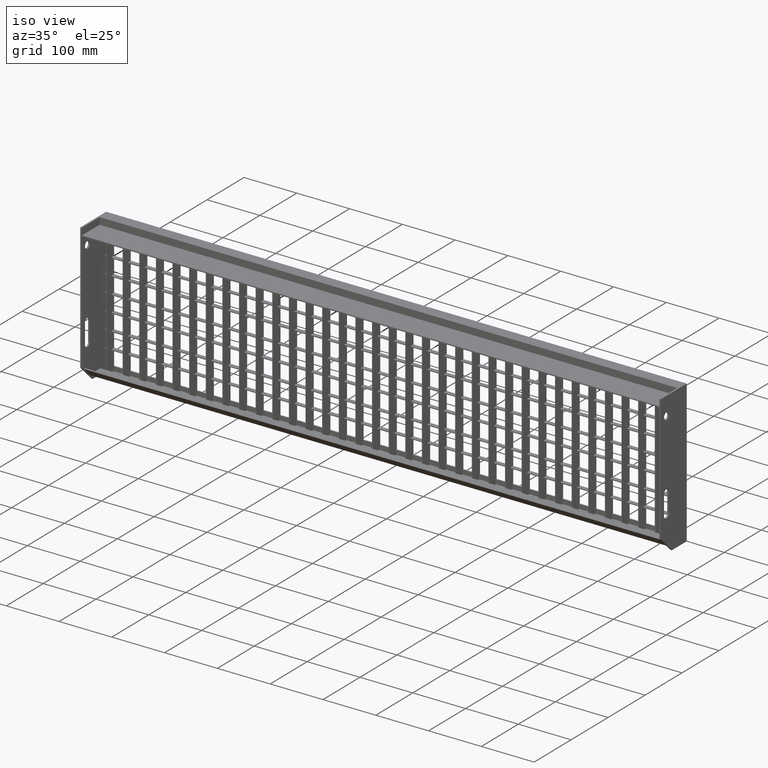
[diagram: clean part render]
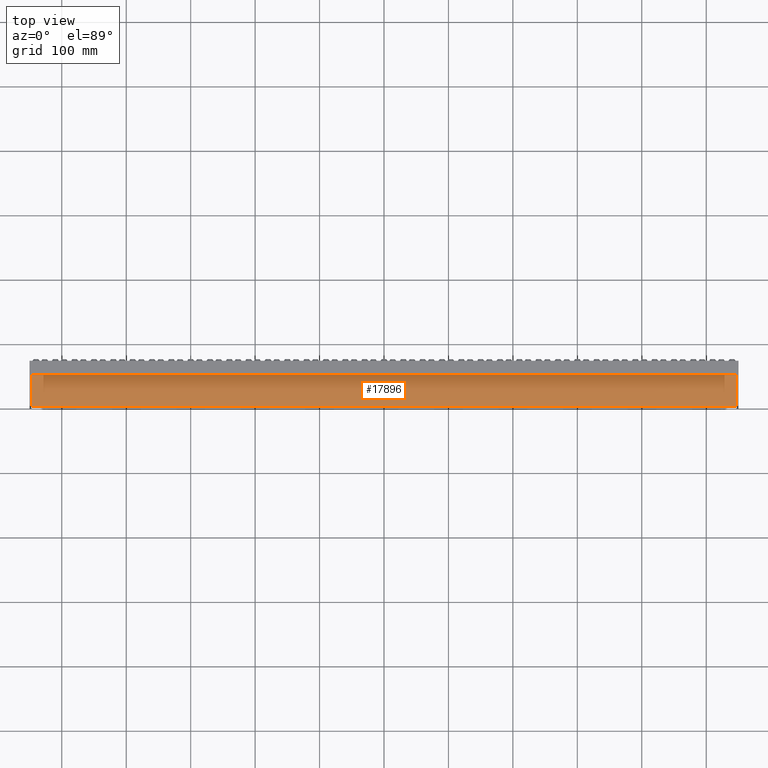
[diagram: tour spotlight — one face highlighted and labeled with its STEP entity id]
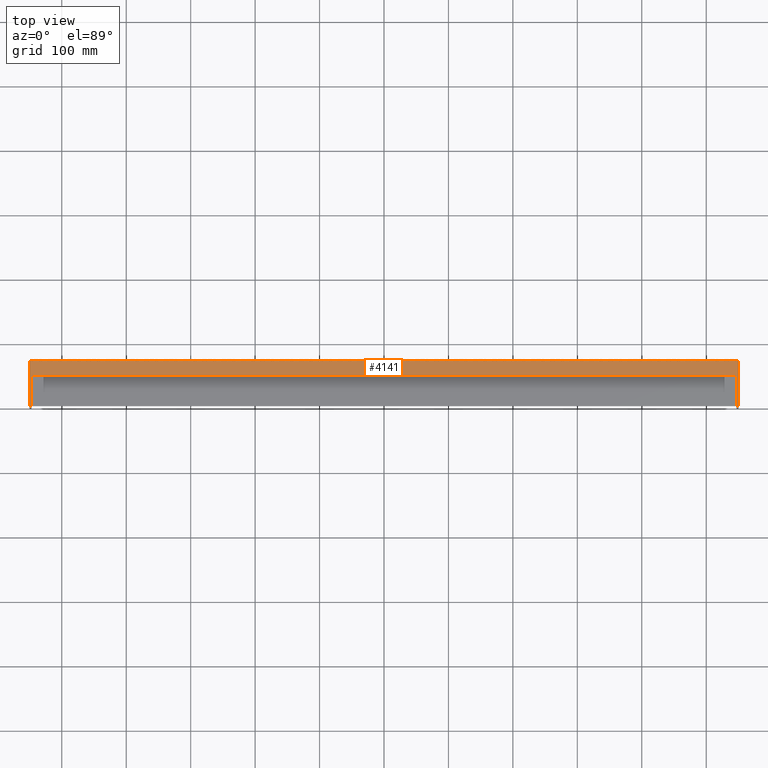
[diagram: tour spotlight — one face highlighted and labeled with its STEP entity id]
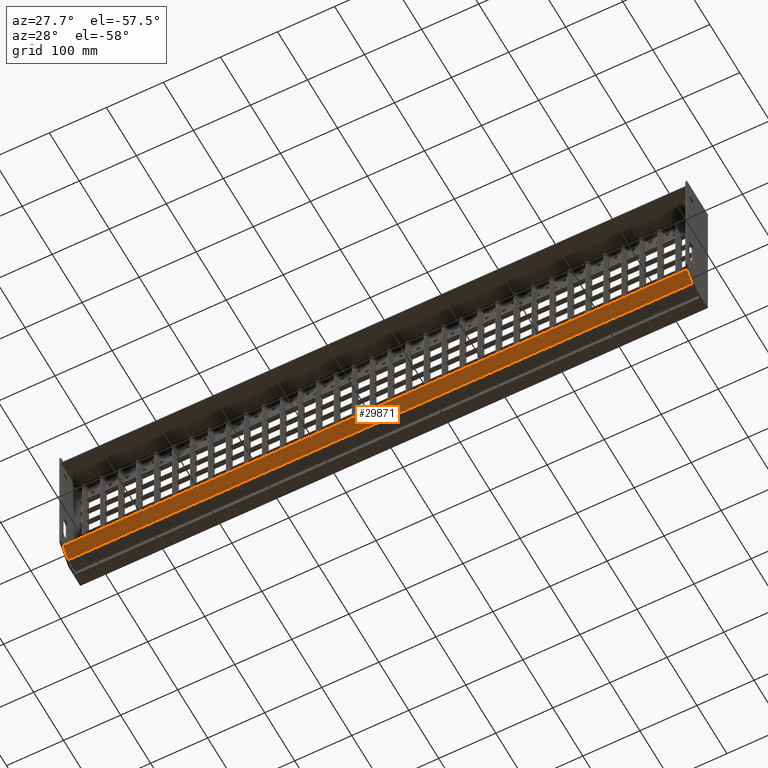
[diagram: tour spotlight — one face highlighted and labeled with its STEP entity id]
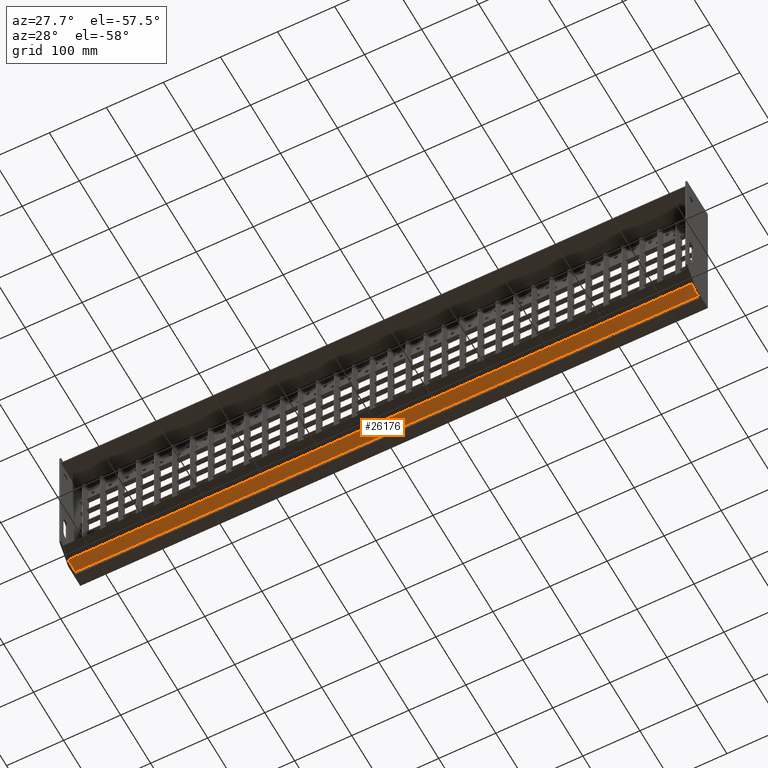
[diagram: tour spotlight — one face highlighted and labeled with its STEP entity id]
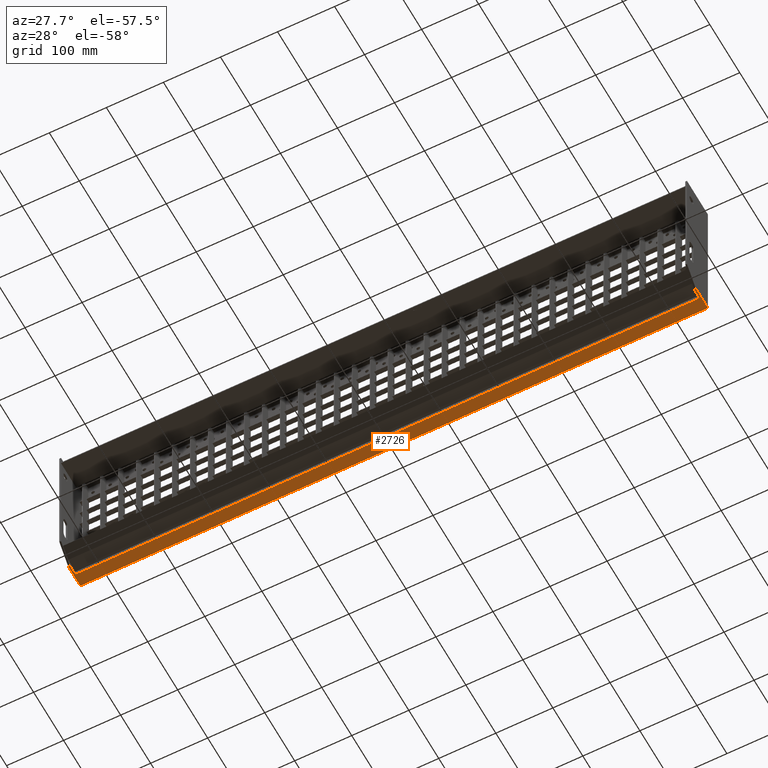
[diagram: tour spotlight — one face highlighted and labeled with its STEP entity id]
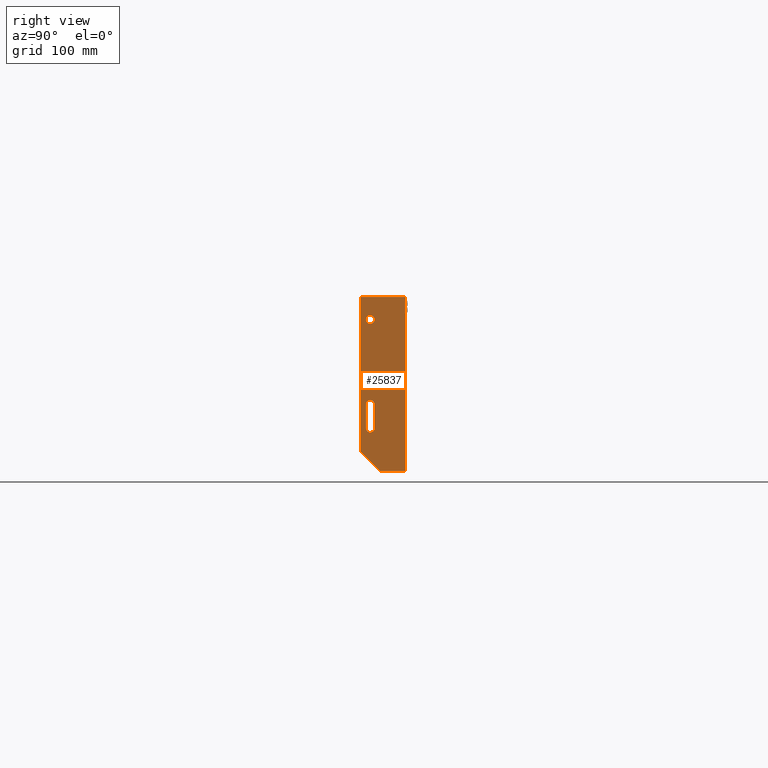
[diagram: tour spotlight — one face highlighted and labeled with its STEP entity id]
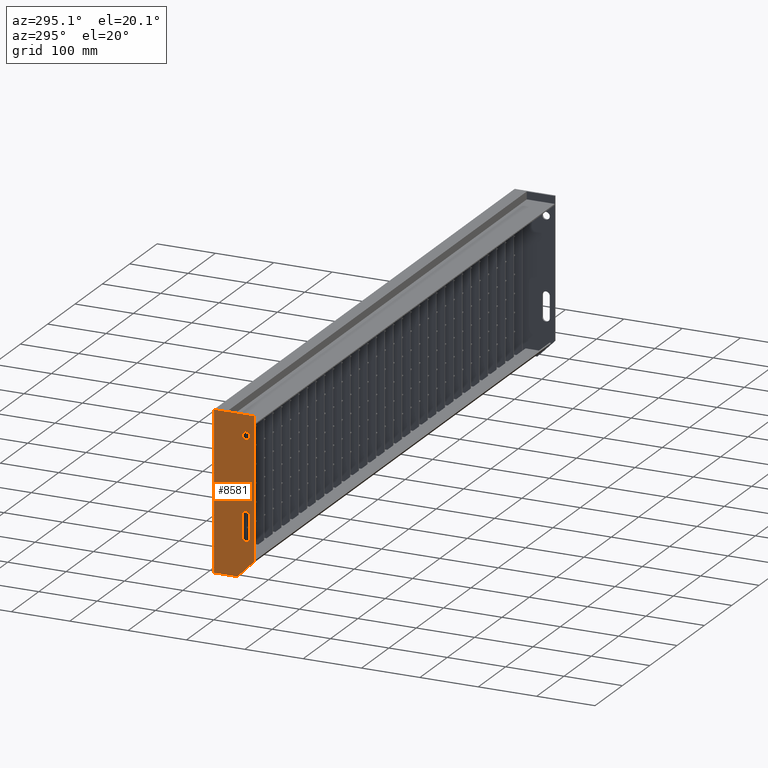
[diagram: tour spotlight — one face highlighted and labeled with its STEP entity id]
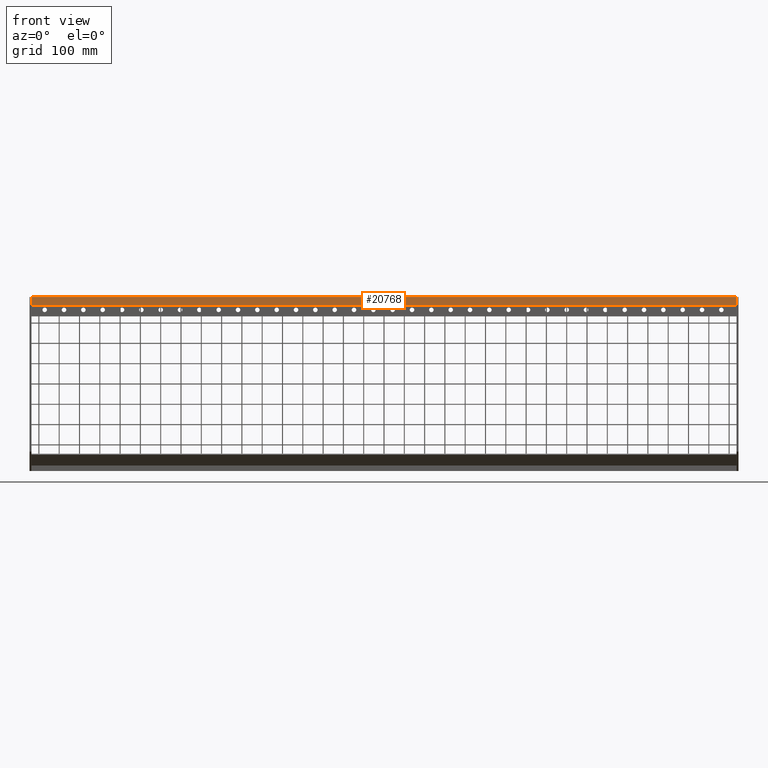
[diagram: tour spotlight — one face highlighted and labeled with its STEP entity id]
A machine part: a face-by-face anatomy tour. The part has 997 B-rep faces; the first image is the clean iso view, then the 8 largest visible faces are spotlighted one at a time (largest first), each with its STEP entity span.

Face 1 — top view, entity #17896. In plain terms, the highlighted planar face has unit normal (0, -0, -1).
Definition (entity closure, byte-faithful):
#3037 = LINE ( 'NONE', #6339, #6416 ) ;
#3094 = DIRECTION ( 'NONE',  ( -0.0000000000000000000, 1.000000000000000000, -3.614007241618339900E-017 ) ) ;
#3233 = CARTESIAN_POINT ( 'NONE',  ( 547.0000000000000000, 5.050613422867832400E-016, -12.99999999999999800 ) ) ;
#4289 = EDGE_LOOP ( 'NONE', ( #23753, #20074, #18747, #26481 ) ) ;
#6078 = VERTEX_POINT ( 'NONE', #30295 ) ;
#6229 = DIRECTION ( 'NONE',  ( 1.000000000000000000, -0.0000000000000000000, -0.0000000000000000000 ) ) ;
#6339 = CARTESIAN_POINT ( 'NONE',  ( -623.1577310586392300, 48.00000000000011400, -13.00000000000000000 ) ) ;
#6416 = VECTOR ( 'NONE', #6229, 1000.000000000000000 ) ;
#8819 = DIRECTION ( 'NONE',  ( 1.000000000000000000, -0.0000000000000000000, -0.0000000000000000000 ) ) ;
#10242 = EDGE_CURVE ( 'NONE', #6078, #25622, #33729, .T. ) ;
#11173 = PLANE ( 'NONE',  #27193 ) ;
#11463 = FACE_OUTER_BOUND ( 'NONE', #4289, .T. ) ;
#13854 = CARTESIAN_POINT ( 'NONE',  ( -547.0000000000000000, 48.00000000000011400, -13.00000000000000000 ) ) ;
#14410 = CARTESIAN_POINT ( 'NONE',  ( -547.0000000000000000, 48.00000000000011400, -13.00000000000000000 ) ) ;
#15365 = CARTESIAN_POINT ( 'NONE',  ( 547.0000000000000000, 48.00000000000011400, -13.00000000000000000 ) ) ;
#16050 = EDGE_CURVE ( 'NONE', #22966, #6078, #33395, .T. ) ;
#16568 = DIRECTION ( 'NONE',  ( 0.0000000000000000000, -3.614007241618339900E-017, -1.000000000000000000 ) ) ;
#17108 = DIRECTION ( 'NONE',  ( 0.0000000000000000000, -1.000000000000000000, 3.614007241618339900E-017 ) ) ;
#17896 = ADVANCED_FACE ( 'NONE', ( #11463 ), #11173, .F. ) ;
#18349 = VECTOR ( 'NONE', #17108, 1000.000000000000000 ) ;
#18747 = ORIENTED_EDGE ( 'NONE', *, *, #10242, .T. ) ;
#19501 = VECTOR ( 'NONE', #8819, 1000.000000000000000 ) ;
#19758 = DIRECTION ( 'NONE',  ( 0.0000000000000000000, 1.000000000000000000, -3.614007241618339900E-017 ) ) ;
#20074 = ORIENTED_EDGE ( 'NONE', *, *, #16050, .T. ) ;
#22262 = CARTESIAN_POINT ( 'NONE',  ( 547.0000000000000000, 48.00000000000011400, -13.00000000000000000 ) ) ;
#22592 = CARTESIAN_POINT ( 'NONE',  ( -623.1577310586392300, 5.050613422867832400E-016, -12.99999999999999800 ) ) ;
#22660 = VECTOR ( 'NONE', #3094, 1000.000000000000000 ) ;
#22966 = VERTEX_POINT ( 'NONE', #13854 ) ;
#23753 = ORIENTED_EDGE ( 'NONE', *, *, #29739, .F. ) ;
#25622 = VERTEX_POINT ( 'NONE', #3233 ) ;
#26481 = ORIENTED_EDGE ( 'NONE', *, *, #34875, .T. ) ;
#27193 = AXIS2_PLACEMENT_3D ( 'NONE', #32632, #16568, #19758 ) ;
#29739 = EDGE_CURVE ( 'NONE', #22966, #33208, #3037, .T. ) ;
#30295 = CARTESIAN_POINT ( 'NONE',  ( -547.0000000000000000, 2.020667218593132700E-013, -13.00000000000001100 ) ) ;
#31856 = LINE ( 'NONE', #22262, #22660 ) ;
#32632 = CARTESIAN_POINT ( 'NONE',  ( -623.1577310586392300, 48.00000000000011400, -13.00000000000000000 ) ) ;
#33208 = VERTEX_POINT ( 'NONE', #15365 ) ;
#33395 = LINE ( 'NONE', #14410, #18349 ) ;
#33729 = LINE ( 'NONE', #22592, #19501 ) ;
#34875 = EDGE_CURVE ( 'NONE', #25622, #33208, #31856, .T. ) ;

Face 2 — top view, entity #4141. In plain terms, the highlighted planar face has unit normal (0, 0, 1).
Definition (entity closure, byte-faithful):
#1 = DIRECTION ( 'NONE',  ( -1.000000000000000000, 0.0000000000000000000, 0.0000000000000000000 ) ) ;
#233 = CARTESIAN_POINT ( 'NONE',  ( 550.0000000000000000, 70.00000000000021300, 0.0000000000000000000 ) ) ;
#278 = CARTESIAN_POINT ( 'NONE',  ( 547.0000000000000000, 2.020667218593132700E-013, 0.0000000000000000000 ) ) ;
#374 = EDGE_CURVE ( 'NONE', #12097, #20906, #13455, .T. ) ;
#620 = CARTESIAN_POINT ( 'NONE',  ( 547.0000000000000000, 48.00000000000011400, 0.0000000000000000000 ) ) ;
#798 = ORIENTED_EDGE ( 'NONE', *, *, #374, .T. ) ;
#1203 = CARTESIAN_POINT ( 'NONE',  ( 547.0000000000000000, 2.020667218593132700E-013, 0.0000000000000000000 ) ) ;
#2608 = AXIS2_PLACEMENT_3D ( 'NONE', #34780, #26815, #21230 ) ;
#2614 = CARTESIAN_POINT ( 'NONE',  ( -547.0000000000000000, 2.020667218593132700E-013, 0.0000000000000000000 ) ) ;
#2747 = VERTEX_POINT ( 'NONE', #1203 ) ;
#3286 = EDGE_CURVE ( 'NONE', #12097, #28045, #21823, .T. ) ;
#3764 = VECTOR ( 'NONE', #6932, 1000.000000000000000 ) ;
#4107 = EDGE_CURVE ( 'NONE', #28693, #28677, #13391, .T. ) ;
#4141 = ADVANCED_FACE ( 'NONE', ( #12521 ), #21347, .T. ) ;
#4161 = CARTESIAN_POINT ( 'NONE',  ( 550.0000000000000000, 2.020667218593132700E-013, 0.0000000000000000000 ) ) ;
#4557 = CARTESIAN_POINT ( 'NONE',  ( -547.0000000000000000, 48.00000000000011400, 0.0000000000000000000 ) ) ;
#5184 = EDGE_CURVE ( 'NONE', #20906, #2747, #12031, .T. ) ;
#6735 = ORIENTED_EDGE ( 'NONE', *, *, #20027, .F. ) ;
#6758 = CARTESIAN_POINT ( 'NONE',  ( 550.0000000000000000, 2.020667218593132700E-013, 0.0000000000000000000 ) ) ;
#6932 = DIRECTION ( 'NONE',  ( 1.000000000000000000, -0.0000000000000000000, -0.0000000000000000000 ) ) ;
#7113 = DIRECTION ( 'NONE',  ( 0.0000000000000000000, -1.000000000000000000, -0.0000000000000000000 ) ) ;
#7489 = CARTESIAN_POINT ( 'NONE',  ( 547.0000000000000000, 2.020667218593132700E-013, 0.0000000000000000000 ) ) ;
#9478 = LINE ( 'NONE', #278, #28363 ) ;
#9480 = VECTOR ( 'NONE', #7113, 1000.000000000000000 ) ;
#9919 = LINE ( 'NONE', #15352, #9480 ) ;
#11984 = ORIENTED_EDGE ( 'NONE', *, *, #4107, .F. ) ;
#12031 = LINE ( 'NONE', #7489, #13721 ) ;
#12097 = VERTEX_POINT ( 'NONE', #4557 ) ;
#12411 = DIRECTION ( 'NONE',  ( -0.0000000000000000000, -1.000000000000000000, -0.0000000000000000000 ) ) ;
#12521 = FACE_OUTER_BOUND ( 'NONE', #20956, .T. ) ;
#13043 = VECTOR ( 'NONE', #1, 1000.000000000000000 ) ;
#13391 = LINE ( 'NONE', #21109, #22627 ) ;
#13414 = CARTESIAN_POINT ( 'NONE',  ( -550.0000000000000000, 2.020667218593132700E-013, 0.0000000000000000000 ) ) ;
#13455 = LINE ( 'NONE', #33106, #3764 ) ;
#13721 = VECTOR ( 'NONE', #21037, 1000.000000000000000 ) ;
#15067 = VECTOR ( 'NONE', #33533, 1000.000000000000000 ) ;
#15352 = CARTESIAN_POINT ( 'NONE',  ( -550.0000000000000000, 2.020667218593132700E-013, 0.0000000000000000000 ) ) ;
#16925 = VERTEX_POINT ( 'NONE', #13414 ) ;
#18809 = ORIENTED_EDGE ( 'NONE', *, *, #28036, .T. ) ;
#20027 = EDGE_CURVE ( 'NONE', #28677, #26654, #22730, .T. ) ;
#20230 = VECTOR ( 'NONE', #12411, 1000.000000000000000 ) ;
#20906 = VERTEX_POINT ( 'NONE', #620 ) ;
#20956 = EDGE_LOOP ( 'NONE', ( #6735, #11984, #18809, #29977, #22183, #798, #33198, #30300 ) ) ;
#21037 = DIRECTION ( 'NONE',  ( -0.0000000000000000000, -1.000000000000000000, -0.0000000000000000000 ) ) ;
#21109 = CARTESIAN_POINT ( 'NONE',  ( 547.0000000000000000, 70.00000000000021300, 0.0000000000000000000 ) ) ;
#21230 = DIRECTION ( 'NONE',  ( 1.000000000000000000, 0.0000000000000000000, -0.0000000000000000000 ) ) ;
#21347 = PLANE ( 'NONE',  #2608 ) ;
#21823 = LINE ( 'NONE', #27346, #15067 ) ;
#22183 = ORIENTED_EDGE ( 'NONE', *, *, #3286, .F. ) ;
#22627 = VECTOR ( 'NONE', #23789, 1000.000000000000000 ) ;
#22730 = LINE ( 'NONE', #6758, #20230 ) ;
#23170 = EDGE_CURVE ( 'NONE', #2747, #26654, #9478, .T. ) ;
#23789 = DIRECTION ( 'NONE',  ( 1.000000000000000000, 0.0000000000000000000, 0.0000000000000000000 ) ) ;
#24191 = EDGE_CURVE ( 'NONE', #28045, #16925, #27300, .T. ) ;
#24360 = CARTESIAN_POINT ( 'NONE',  ( -550.0000000000000000, 70.00000000000021300, 0.0000000000000000000 ) ) ;
#26029 = CARTESIAN_POINT ( 'NONE',  ( -547.0000000000000000, 2.020667218593132700E-013, 0.0000000000000000000 ) ) ;
#26654 = VERTEX_POINT ( 'NONE', #4161 ) ;
#26815 = DIRECTION ( 'NONE',  ( 0.0000000000000000000, 0.0000000000000000000, 1.000000000000000000 ) ) ;
#27300 = LINE ( 'NONE', #2614, #13043 ) ;
#27346 = CARTESIAN_POINT ( 'NONE',  ( -547.0000000000000000, 2.020667218593132700E-013, 0.0000000000000000000 ) ) ;
#28036 = EDGE_CURVE ( 'NONE', #28693, #16925, #9919, .T. ) ;
#28045 = VERTEX_POINT ( 'NONE', #26029 ) ;
#28363 = VECTOR ( 'NONE', #30217, 1000.000000000000000 ) ;
#28677 = VERTEX_POINT ( 'NONE', #233 ) ;
#28693 = VERTEX_POINT ( 'NONE', #24360 ) ;
#29977 = ORIENTED_EDGE ( 'NONE', *, *, #24191, .F. ) ;
#30217 = DIRECTION ( 'NONE',  ( 1.000000000000000000, 0.0000000000000000000, 0.0000000000000000000 ) ) ;
#30300 = ORIENTED_EDGE ( 'NONE', *, *, #23170, .T. ) ;
#33106 = CARTESIAN_POINT ( 'NONE',  ( -623.1577310586392300, 48.00000000000011400, 0.0000000000000000000 ) ) ;
#33198 = ORIENTED_EDGE ( 'NONE', *, *, #5184, .T. ) ;
#33533 = DIRECTION ( 'NONE',  ( 0.0000000000000000000, -1.000000000000000000, -0.0000000000000000000 ) ) ;
#34780 = CARTESIAN_POINT ( 'NONE',  ( 547.0000000000000000, 2.020667218593132700E-013, 0.0000000000000000000 ) ) ;

Face 3 — auxiliary view, entity #29871. In plain terms, the highlighted planar face has unit normal (0, 0.7071, 0.7071).
Definition (entity closure, byte-faithful):
#206 = LINE ( 'NONE', #12543, #15790 ) ;
#2105 = EDGE_CURVE ( 'NONE', #3517, #21243, #28164, .T. ) ;
#3517 = VERTEX_POINT ( 'NONE', #4430 ) ;
#4430 = CARTESIAN_POINT ( 'NONE',  ( -547.0000000000000000, 6.650757595082533900, -244.5294372515228600 ) ) ;
#4707 = ORIENTED_EDGE ( 'NONE', *, *, #28063, .T. ) ;
#5951 = VECTOR ( 'NONE', #18269, 1000.000000000000100 ) ;
#6528 = DIRECTION ( 'NONE',  ( 1.000000000000000000, -0.0000000000000000000, -0.0000000000000000000 ) ) ;
#7234 = DIRECTION ( 'NONE',  ( 0.0000000000000000000, -0.7071067811865474600, 0.7071067811865474600 ) ) ;
#7960 = EDGE_CURVE ( 'NONE', #3517, #28719, #20706, .T. ) ;
#9286 = DIRECTION ( 'NONE',  ( 0.0000000000000000000, 0.7071067811865475700, 0.7071067811865475700 ) ) ;
#10383 = VECTOR ( 'NONE', #6528, 1000.000000000000000 ) ;
#11586 = VERTEX_POINT ( 'NONE', #29400 ) ;
#11987 = DIRECTION ( 'NONE',  ( 0.0000000000000000000, -0.7071067811865474600, 0.7071067811865474600 ) ) ;
#12543 = CARTESIAN_POINT ( 'NONE',  ( 547.0000000000000000, 23.62132034355966700, -261.5000000000000000 ) ) ;
#14999 = CARTESIAN_POINT ( 'NONE',  ( -623.1577310586392300, 23.62132034355966700, -261.5000000000000000 ) ) ;
#15413 = LINE ( 'NONE', #14999, #10383 ) ;
#15790 = VECTOR ( 'NONE', #7234, 1000.000000000000100 ) ;
#16962 = ORIENTED_EDGE ( 'NONE', *, *, #26634, .T. ) ;
#18269 = DIRECTION ( 'NONE',  ( 0.0000000000000000000, 0.7071067811865474600, -0.7071067811865474600 ) ) ;
#18273 = AXIS2_PLACEMENT_3D ( 'NONE', #25379, #9286, #11987 ) ;
#19067 = EDGE_LOOP ( 'NONE', ( #27662, #28784, #16962, #4707 ) ) ;
#20231 = VECTOR ( 'NONE', #20381, 1000.000000000000000 ) ;
#20381 = DIRECTION ( 'NONE',  ( 1.000000000000000000, -0.0000000000000000000, -0.0000000000000000000 ) ) ;
#20706 = LINE ( 'NONE', #31357, #5951 ) ;
#21243 = VERTEX_POINT ( 'NONE', #29574 ) ;
#24253 = CARTESIAN_POINT ( 'NONE',  ( -547.0000000000000000, 23.62132034355964200, -261.5000000000000000 ) ) ;
#25379 = CARTESIAN_POINT ( 'NONE',  ( -623.1577310586392300, 23.62132034355966700, -261.5000000000000000 ) ) ;
#25731 = FACE_OUTER_BOUND ( 'NONE', #19067, .T. ) ;
#25965 = CARTESIAN_POINT ( 'NONE',  ( -623.1577310586392300, 6.650757595082533900, -244.5294372515228600 ) ) ;
#26634 = EDGE_CURVE ( 'NONE', #28719, #11586, #15413, .T. ) ;
#27662 = ORIENTED_EDGE ( 'NONE', *, *, #2105, .F. ) ;
#28063 = EDGE_CURVE ( 'NONE', #11586, #21243, #206, .T. ) ;
#28164 = LINE ( 'NONE', #25965, #20231 ) ;
#28719 = VERTEX_POINT ( 'NONE', #24253 ) ;
#28784 = ORIENTED_EDGE ( 'NONE', *, *, #7960, .T. ) ;
#29400 = CARTESIAN_POINT ( 'NONE',  ( 547.0000000000000000, 23.62132034355966700, -261.5000000000000000 ) ) ;
#29574 = CARTESIAN_POINT ( 'NONE',  ( 547.0000000000000000, 6.650757595082533900, -244.5294372515228600 ) ) ;
#29871 = ADVANCED_FACE ( 'NONE', ( #25731 ), #31230, .F. ) ;
#31230 = PLANE ( 'NONE',  #18273 ) ;
#31357 = CARTESIAN_POINT ( 'NONE',  ( -547.0000000000000000, 23.62132034355966700, -261.5000000000000000 ) ) ;

Face 4 — auxiliary view, entity #26176. In plain terms, the highlighted planar face has unit normal (0, 0, 1).
Definition (entity closure, byte-faithful):
#392 = LINE ( 'NONE', #14580, #28552 ) ;
#1685 = VERTEX_POINT ( 'NONE', #32054 ) ;
#2460 = DIRECTION ( 'NONE',  ( 0.0000000000000000000, 1.000000000000000000, 0.0000000000000000000 ) ) ;
#3969 = LINE ( 'NONE', #20566, #34589 ) ;
#4725 = EDGE_CURVE ( 'NONE', #28719, #29653, #11230, .T. ) ;
#6528 = DIRECTION ( 'NONE',  ( 1.000000000000000000, -0.0000000000000000000, -0.0000000000000000000 ) ) ;
#8488 = EDGE_CURVE ( 'NONE', #29653, #1685, #3969, .T. ) ;
#9985 = FACE_OUTER_BOUND ( 'NONE', #13987, .T. ) ;
#10224 = ORIENTED_EDGE ( 'NONE', *, *, #8488, .T. ) ;
#10383 = VECTOR ( 'NONE', #6528, 1000.000000000000000 ) ;
#11230 = LINE ( 'NONE', #34627, #24254 ) ;
#11434 = DIRECTION ( 'NONE',  ( 0.0000000000000000000, 0.0000000000000000000, 1.000000000000000000 ) ) ;
#11586 = VERTEX_POINT ( 'NONE', #29400 ) ;
#11977 = DIRECTION ( 'NONE',  ( 0.0000000000000000000, -1.000000000000000000, 0.0000000000000000000 ) ) ;
#13987 = EDGE_LOOP ( 'NONE', ( #34098, #22606, #10224, #29116 ) ) ;
#14118 = CARTESIAN_POINT ( 'NONE',  ( -547.0000000000000000, 48.00000000000020600, -261.5000000000000000 ) ) ;
#14580 = CARTESIAN_POINT ( 'NONE',  ( 547.0000000000000000, 48.00000000000020600, -261.5000000000000000 ) ) ;
#14999 = CARTESIAN_POINT ( 'NONE',  ( -623.1577310586392300, 23.62132034355966700, -261.5000000000000000 ) ) ;
#15413 = LINE ( 'NONE', #14999, #10383 ) ;
#17974 = DIRECTION ( 'NONE',  ( 1.000000000000000000, -0.0000000000000000000, -0.0000000000000000000 ) ) ;
#19797 = CARTESIAN_POINT ( 'NONE',  ( -623.1577310586392300, 48.00000000000020600, -261.5000000000000000 ) ) ;
#20506 = EDGE_CURVE ( 'NONE', #1685, #11586, #392, .T. ) ;
#20566 = CARTESIAN_POINT ( 'NONE',  ( -623.1577310586392300, 48.00000000000020600, -261.5000000000000000 ) ) ;
#22026 = PLANE ( 'NONE',  #24014 ) ;
#22606 = ORIENTED_EDGE ( 'NONE', *, *, #4725, .T. ) ;
#24014 = AXIS2_PLACEMENT_3D ( 'NONE', #19797, #11434, #27389 ) ;
#24253 = CARTESIAN_POINT ( 'NONE',  ( -547.0000000000000000, 23.62132034355964200, -261.5000000000000000 ) ) ;
#24254 = VECTOR ( 'NONE', #2460, 1000.000000000000000 ) ;
#26176 = ADVANCED_FACE ( 'NONE', ( #9985 ), #22026, .F. ) ;
#26634 = EDGE_CURVE ( 'NONE', #28719, #11586, #15413, .T. ) ;
#27389 = DIRECTION ( 'NONE',  ( 1.000000000000000000, 0.0000000000000000000, -0.0000000000000000000 ) ) ;
#28552 = VECTOR ( 'NONE', #11977, 1000.000000000000000 ) ;
#28719 = VERTEX_POINT ( 'NONE', #24253 ) ;
#29116 = ORIENTED_EDGE ( 'NONE', *, *, #20506, .T. ) ;
#29400 = CARTESIAN_POINT ( 'NONE',  ( 547.0000000000000000, 23.62132034355966700, -261.5000000000000000 ) ) ;
#29653 = VERTEX_POINT ( 'NONE', #14118 ) ;
#32054 = CARTESIAN_POINT ( 'NONE',  ( 547.0000000000000000, 48.00000000000020600, -261.5000000000000000 ) ) ;
#34098 = ORIENTED_EDGE ( 'NONE', *, *, #26634, .F. ) ;
#34589 = VECTOR ( 'NONE', #17974, 1000.000000000000000 ) ;
#34627 = CARTESIAN_POINT ( 'NONE',  ( -547.0000000000000000, 48.00000000000020600, -261.5000000000000000 ) ) ;

Face 5 — auxiliary view, entity #2726. In plain terms, the highlighted planar face has unit normal (0, 0, -1).
Definition (entity closure, byte-faithful):
#449 = LINE ( 'NONE', #21615, #25288 ) ;
#480 = VECTOR ( 'NONE', #23661, 1000.000000000000000 ) ;
#561 = DIRECTION ( 'NONE',  ( 1.000000000000000000, 0.0000000000000000000, 0.0000000000000000000 ) ) ;
#911 = VECTOR ( 'NONE', #29398, 1000.000000000000000 ) ;
#1672 = DIRECTION ( 'NONE',  ( 0.0000000000000000000, 0.0000000000000000000, -1.000000000000000000 ) ) ;
#2671 = ORIENTED_EDGE ( 'NONE', *, *, #7194, .T. ) ;
#2726 = ADVANCED_FACE ( 'NONE', ( #7136 ), #20531, .T. ) ;
#2988 = LINE ( 'NONE', #23566, #19017 ) ;
#4383 = DIRECTION ( 'NONE',  ( -1.000000000000000000, 0.0000000000000000000, -0.0000000000000000000 ) ) ;
#4749 = CARTESIAN_POINT ( 'NONE',  ( 550.0000000000000000, 70.00000000000021300, -270.0000000000000000 ) ) ;
#4825 = ORIENTED_EDGE ( 'NONE', *, *, #15124, .F. ) ;
#5708 = CARTESIAN_POINT ( 'NONE',  ( 550.0000000000000000, 30.00000000000020600, -270.0000000000000000 ) ) ;
#5904 = EDGE_LOOP ( 'NONE', ( #4825, #34536, #6312, #7266, #26212, #11557, #2671, #23565 ) ) ;
#6312 = ORIENTED_EDGE ( 'NONE', *, *, #11144, .T. ) ;
#7136 = FACE_OUTER_BOUND ( 'NONE', #5904, .T. ) ;
#7194 = EDGE_CURVE ( 'NONE', #9778, #16555, #17831, .T. ) ;
#7266 = ORIENTED_EDGE ( 'NONE', *, *, #7540, .F. ) ;
#7540 = EDGE_CURVE ( 'NONE', #26785, #26973, #16923, .T. ) ;
#7922 = CARTESIAN_POINT ( 'NONE',  ( -623.1577310586392300, 48.00000000000020600, -270.0000000000000000 ) ) ;
#8081 = DIRECTION ( 'NONE',  ( -0.0000000000000000000, 1.000000000000000000, -0.0000000000000000000 ) ) ;
#9209 = CARTESIAN_POINT ( 'NONE',  ( 547.0000000000000000, 30.00000000000020600, -270.0000000000000000 ) ) ;
#9778 = VERTEX_POINT ( 'NONE', #29641 ) ;
#10110 = CARTESIAN_POINT ( 'NONE',  ( 550.0000000000000000, 70.00000000000021300, -270.0000000000000000 ) ) ;
#10428 = DIRECTION ( 'NONE',  ( 0.0000000000000000000, 1.000000000000000000, 0.0000000000000000000 ) ) ;
#11144 = EDGE_CURVE ( 'NONE', #33581, #26973, #449, .T. ) ;
#11479 = EDGE_CURVE ( 'NONE', #21160, #9778, #2988, .T. ) ;
#11557 = ORIENTED_EDGE ( 'NONE', *, *, #11479, .T. ) ;
#11683 = EDGE_CURVE ( 'NONE', #33581, #21717, #26934, .T. ) ;
#12405 = DIRECTION ( 'NONE',  ( -1.000000000000000000, 0.0000000000000000000, 0.0000000000000000000 ) ) ;
#12736 = LINE ( 'NONE', #15438, #480 ) ;
#12921 = LINE ( 'NONE', #10110, #31784 ) ;
#15124 = EDGE_CURVE ( 'NONE', #21717, #17821, #12921, .T. ) ;
#15438 = CARTESIAN_POINT ( 'NONE',  ( -547.0000000000000000, 70.00000000000021300, -270.0000000000000000 ) ) ;
#16555 = VERTEX_POINT ( 'NONE', #28096 ) ;
#16923 = LINE ( 'NONE', #7922, #911 ) ;
#17821 = VERTEX_POINT ( 'NONE', #4749 ) ;
#17831 = LINE ( 'NONE', #34810, #27864 ) ;
#19017 = VECTOR ( 'NONE', #12405, 1000.000000000000000 ) ;
#19039 = EDGE_CURVE ( 'NONE', #21160, #26785, #12736, .T. ) ;
#20531 = PLANE ( 'NONE',  #34069 ) ;
#20643 = CARTESIAN_POINT ( 'NONE',  ( -547.0000000000000000, 30.00000000000020600, -270.0000000000000000 ) ) ;
#21160 = VERTEX_POINT ( 'NONE', #20643 ) ;
#21615 = CARTESIAN_POINT ( 'NONE',  ( 547.0000000000000000, 70.00000000000021300, -270.0000000000000000 ) ) ;
#21717 = VERTEX_POINT ( 'NONE', #5708 ) ;
#21765 = EDGE_CURVE ( 'NONE', #16555, #17821, #22625, .T. ) ;
#22625 = LINE ( 'NONE', #26851, #28060 ) ;
#23565 = ORIENTED_EDGE ( 'NONE', *, *, #21765, .T. ) ;
#23566 = CARTESIAN_POINT ( 'NONE',  ( -547.0000000000000000, 30.00000000000020600, -270.0000000000000000 ) ) ;
#23661 = DIRECTION ( 'NONE',  ( 0.0000000000000000000, 1.000000000000000000, 0.0000000000000000000 ) ) ;
#23804 = CARTESIAN_POINT ( 'NONE',  ( -547.0000000000000000, 48.00000000000020600, -270.0000000000000000 ) ) ;
#24032 = VECTOR ( 'NONE', #561, 1000.000000000000000 ) ;
#24838 = CARTESIAN_POINT ( 'NONE',  ( 547.0000000000000000, 48.00000000000020600, -270.0000000000000000 ) ) ;
#25288 = VECTOR ( 'NONE', #8081, 1000.000000000000000 ) ;
#25418 = CARTESIAN_POINT ( 'NONE',  ( 547.0000000000000000, 70.00000000000021300, -270.0000000000000000 ) ) ;
#26212 = ORIENTED_EDGE ( 'NONE', *, *, #19039, .F. ) ;
#26785 = VERTEX_POINT ( 'NONE', #23804 ) ;
#26851 = CARTESIAN_POINT ( 'NONE',  ( 547.0000000000000000, 70.00000000000021300, -270.0000000000000000 ) ) ;
#26934 = LINE ( 'NONE', #32853, #24032 ) ;
#26973 = VERTEX_POINT ( 'NONE', #24838 ) ;
#27864 = VECTOR ( 'NONE', #10428, 1000.000000000000000 ) ;
#28060 = VECTOR ( 'NONE', #32359, 1000.000000000000000 ) ;
#28096 = CARTESIAN_POINT ( 'NONE',  ( -550.0000000000000000, 70.00000000000021300, -270.0000000000000000 ) ) ;
#28641 = DIRECTION ( 'NONE',  ( -0.0000000000000000000, 1.000000000000000000, -0.0000000000000000000 ) ) ;
#29398 = DIRECTION ( 'NONE',  ( 1.000000000000000000, -0.0000000000000000000, -0.0000000000000000000 ) ) ;
#29641 = CARTESIAN_POINT ( 'NONE',  ( -550.0000000000000000, 30.00000000000020600, -270.0000000000000000 ) ) ;
#31784 = VECTOR ( 'NONE', #28641, 1000.000000000000000 ) ;
#32359 = DIRECTION ( 'NONE',  ( 1.000000000000000000, 0.0000000000000000000, 0.0000000000000000000 ) ) ;
#32853 = CARTESIAN_POINT ( 'NONE',  ( 547.0000000000000000, 30.00000000000020600, -270.0000000000000000 ) ) ;
#33581 = VERTEX_POINT ( 'NONE', #9209 ) ;
#34069 = AXIS2_PLACEMENT_3D ( 'NONE', #25418, #1672, #4383 ) ;
#34536 = ORIENTED_EDGE ( 'NONE', *, *, #11683, .F. ) ;
#34810 = CARTESIAN_POINT ( 'NONE',  ( -550.0000000000000000, 70.00000000000021300, -270.0000000000000000 ) ) ;

Face 6 — right view, entity #25837. In plain terms, the highlighted planar face has unit normal (-1, 0, 0).
Definition (entity closure, byte-faithful):
#233 = CARTESIAN_POINT ( 'NONE',  ( 550.0000000000000000, 70.00000000000021300, 0.0000000000000000000 ) ) ;
#459 = VERTEX_POINT ( 'NONE', #12937 ) ;
#563 = VERTEX_POINT ( 'NONE', #13044 ) ;
#914 = LINE ( 'NONE', #27876, #33665 ) ;
#1210 = CARTESIAN_POINT ( 'NONE',  ( 550.0000000000000000, 15.00000000000017900, -35.00000000000000000 ) ) ;
#1443 = EDGE_CURVE ( 'NONE', #30054, #21717, #8765, .T. ) ;
#1679 = CARTESIAN_POINT ( 'NONE',  ( 550.0000000000000000, 15.00000000000017900, -35.00000000000000000 ) ) ;
#1764 = CARTESIAN_POINT ( 'NONE',  ( 550.0000000000000000, 8.500000000000163400, -166.4999999999999400 ) ) ;
#3229 = ORIENTED_EDGE ( 'NONE', *, *, #27923, .F. ) ;
#4161 = CARTESIAN_POINT ( 'NONE',  ( 550.0000000000000000, 2.020667218593132700E-013, 0.0000000000000000000 ) ) ;
#4269 = DIRECTION ( 'NONE',  ( 0.0000000000000000000, 0.0000000000000000000, -1.000000000000000000 ) ) ;
#4366 = LINE ( 'NONE', #20970, #18713 ) ;
#4407 = DIRECTION ( 'NONE',  ( 1.000000000000000000, 0.0000000000000000000, 0.0000000000000000000 ) ) ;
#4435 = LINE ( 'NONE', #1764, #17932 ) ;
#4749 = CARTESIAN_POINT ( 'NONE',  ( 550.0000000000000000, 70.00000000000021300, -270.0000000000000000 ) ) ;
#5351 = EDGE_CURVE ( 'NONE', #7588, #16445, #4435, .T. ) ;
#5708 = CARTESIAN_POINT ( 'NONE',  ( 550.0000000000000000, 30.00000000000020600, -270.0000000000000000 ) ) ;
#6728 = CARTESIAN_POINT ( 'NONE',  ( 550.0000000000000000, 15.00000000000018300, -203.4999999999998900 ) ) ;
#6758 = CARTESIAN_POINT ( 'NONE',  ( 550.0000000000000000, 2.020667218593132700E-013, 0.0000000000000000000 ) ) ;
#7103 = DIRECTION ( 'NONE',  ( -1.000000000000000000, 0.0000000000000000000, 0.0000000000000000000 ) ) ;
#7124 = DIRECTION ( 'NONE',  ( 0.0000000000000000000, 0.0000000000000000000, -1.000000000000000000 ) ) ;
#7478 = DIRECTION ( 'NONE',  ( 1.000000000000000000, 0.0000000000000000000, 0.0000000000000000000 ) ) ;
#7588 = VERTEX_POINT ( 'NONE', #8151 ) ;
#8082 = ORIENTED_EDGE ( 'NONE', *, *, #16797, .T. ) ;
#8151 = CARTESIAN_POINT ( 'NONE',  ( 550.0000000000000000, 8.500000000000163400, -166.4999999999999400 ) ) ;
#8282 = FACE_OUTER_BOUND ( 'NONE', #29033, .T. ) ;
#8765 = LINE ( 'NONE', #23168, #22237 ) ;
#8892 = CARTESIAN_POINT ( 'NONE',  ( 550.0000000000000000, 15.00000000000017900, -28.50000000000000400 ) ) ;
#8916 = CIRCLE ( 'NONE', #10412, 6.500000000000005300 ) ;
#8966 = CARTESIAN_POINT ( 'NONE',  ( 550.0000000000000000, 8.500000000000177600, -203.4999999999998900 ) ) ;
#9435 = DIRECTION ( 'NONE',  ( 0.0000000000000000000, 3.750753461571482800E-016, -1.000000000000000000 ) ) ;
#9828 = EDGE_LOOP ( 'NONE', ( #17279, #3229, #27546, #24383, #31881 ) ) ;
#10110 = CARTESIAN_POINT ( 'NONE',  ( 550.0000000000000000, 70.00000000000021300, -270.0000000000000000 ) ) ;
#10412 = AXIS2_PLACEMENT_3D ( 'NONE', #17975, #7478, #7124 ) ;
#10548 = AXIS2_PLACEMENT_3D ( 'NONE', #1679, #31165, #4269 ) ;
#10827 = LINE ( 'NONE', #28580, #33900 ) ;
#11225 = FACE_BOUND ( 'NONE', #23200, .T. ) ;
#11413 = VERTEX_POINT ( 'NONE', #28820 ) ;
#11466 = AXIS2_PLACEMENT_3D ( 'NONE', #6728, #25524, #22958 ) ;
#12249 = CARTESIAN_POINT ( 'NONE',  ( 550.0000000000000000, 21.50000000000018500, -203.4999999999998900 ) ) ;
#12285 = DIRECTION ( 'NONE',  ( 0.0000000000000000000, 3.750753461571482800E-016, 1.000000000000000000 ) ) ;
#12411 = DIRECTION ( 'NONE',  ( -0.0000000000000000000, -1.000000000000000000, -0.0000000000000000000 ) ) ;
#12921 = LINE ( 'NONE', #10110, #31784 ) ;
#12937 = CARTESIAN_POINT ( 'NONE',  ( 550.0000000000000000, 15.00000000000018300, -209.9999999999998900 ) ) ;
#13044 = CARTESIAN_POINT ( 'NONE',  ( 550.0000000000000000, 15.00000000000017900, -41.50000000000000000 ) ) ;
#14087 = ORIENTED_EDGE ( 'NONE', *, *, #18813, .T. ) ;
#14516 = ORIENTED_EDGE ( 'NONE', *, *, #15124, .T. ) ;
#14543 = VERTEX_POINT ( 'NONE', #12249 ) ;
#15124 = EDGE_CURVE ( 'NONE', #21717, #17821, #12921, .T. ) ;
#15361 = VERTEX_POINT ( 'NONE', #8892 ) ;
#15724 = AXIS2_PLACEMENT_3D ( 'NONE', #28371, #4407, #25914 ) ;
#15896 = CIRCLE ( 'NONE', #21004, 6.499999999999999100 ) ;
#16445 = VERTEX_POINT ( 'NONE', #8966 ) ;
#16797 = EDGE_CURVE ( 'NONE', #17821, #28677, #4366, .T. ) ;
#17279 = ORIENTED_EDGE ( 'NONE', *, *, #5351, .F. ) ;
#17308 = ORIENTED_EDGE ( 'NONE', *, *, #17714, .F. ) ;
#17344 = CIRCLE ( 'NONE', #11466, 6.500000000000005300 ) ;
#17714 = EDGE_CURVE ( 'NONE', #15361, #563, #24921, .T. ) ;
#17821 = VERTEX_POINT ( 'NONE', #4749 ) ;
#17932 = VECTOR ( 'NONE', #9435, 1000.000000000000000 ) ;
#17956 = AXIS2_PLACEMENT_3D ( 'NONE', #25653, #7103, #20433 ) ;
#17975 = CARTESIAN_POINT ( 'NONE',  ( 550.0000000000000000, 15.00000000000018300, -203.4999999999998900 ) ) ;
#18321 = ORIENTED_EDGE ( 'NONE', *, *, #20027, .T. ) ;
#18352 = CIRCLE ( 'NONE', #15724, 6.500000000000005300 ) ;
#18713 = VECTOR ( 'NONE', #34400, 1000.000000000000000 ) ;
#18813 = EDGE_CURVE ( 'NONE', #26654, #30054, #914, .T. ) ;
#18892 = EDGE_CURVE ( 'NONE', #16445, #459, #17344, .T. ) ;
#20027 = EDGE_CURVE ( 'NONE', #28677, #26654, #22730, .T. ) ;
#20068 = DIRECTION ( 'NONE',  ( 1.000000000000000000, 0.0000000000000000000, 0.0000000000000000000 ) ) ;
#20230 = VECTOR ( 'NONE', #12411, 1000.000000000000000 ) ;
#20433 = DIRECTION ( 'NONE',  ( 0.0000000000000000000, 0.0000000000000000000, 1.000000000000000000 ) ) ;
#20761 = ORIENTED_EDGE ( 'NONE', *, *, #1443, .T. ) ;
#20970 = CARTESIAN_POINT ( 'NONE',  ( 550.0000000000000000, 70.00000000000021300, 0.0000000000000000000 ) ) ;
#21004 = AXIS2_PLACEMENT_3D ( 'NONE', #1210, #20068, #27777 ) ;
#21717 = VERTEX_POINT ( 'NONE', #5708 ) ;
#21885 = EDGE_CURVE ( 'NONE', #563, #15361, #15896, .T. ) ;
#22042 = DIRECTION ( 'NONE',  ( -0.0000000000000000000, -0.0000000000000000000, -1.000000000000000000 ) ) ;
#22237 = VECTOR ( 'NONE', #30875, 1000.000000000000100 ) ;
#22730 = LINE ( 'NONE', #6758, #20230 ) ;
#22958 = DIRECTION ( 'NONE',  ( 0.0000000000000000000, 0.0000000000000000000, -1.000000000000000000 ) ) ;
#23168 = CARTESIAN_POINT ( 'NONE',  ( 550.0000000000000000, 30.00000000000020600, -270.0000000000000000 ) ) ;
#23200 = EDGE_LOOP ( 'NONE', ( #32303, #17308 ) ) ;
#24198 = CARTESIAN_POINT ( 'NONE',  ( 550.0000000000000000, 2.020667218593132700E-013, -240.0000000000001700 ) ) ;
#24383 = ORIENTED_EDGE ( 'NONE', *, *, #32344, .F. ) ;
#24921 = CIRCLE ( 'NONE', #10548, 6.499999999999999100 ) ;
#25524 = DIRECTION ( 'NONE',  ( 1.000000000000000000, 0.0000000000000000000, 0.0000000000000000000 ) ) ;
#25653 = CARTESIAN_POINT ( 'NONE',  ( 550.0000000000000000, 0.0000000000000000000, 0.0000000000000000000 ) ) ;
#25837 = ADVANCED_FACE ( 'NONE', ( #30970, #11225, #8282 ), #31042, .F. ) ;
#25882 = EDGE_CURVE ( 'NONE', #14543, #11413, #10827, .T. ) ;
#25914 = DIRECTION ( 'NONE',  ( 0.0000000000000000000, 0.0000000000000000000, -1.000000000000000000 ) ) ;
#26654 = VERTEX_POINT ( 'NONE', #4161 ) ;
#27546 = ORIENTED_EDGE ( 'NONE', *, *, #25882, .F. ) ;
#27777 = DIRECTION ( 'NONE',  ( 0.0000000000000000000, 0.0000000000000000000, -1.000000000000000000 ) ) ;
#27876 = CARTESIAN_POINT ( 'NONE',  ( 550.0000000000000000, 2.020667218593132700E-013, -240.0000000000001700 ) ) ;
#27923 = EDGE_CURVE ( 'NONE', #11413, #7588, #18352, .T. ) ;
#28371 = CARTESIAN_POINT ( 'NONE',  ( 550.0000000000000000, 15.00000000000017900, -166.4999999999999400 ) ) ;
#28580 = CARTESIAN_POINT ( 'NONE',  ( 550.0000000000000000, 21.50000000000018100, -203.4999999999998900 ) ) ;
#28641 = DIRECTION ( 'NONE',  ( -0.0000000000000000000, 1.000000000000000000, -0.0000000000000000000 ) ) ;
#28677 = VERTEX_POINT ( 'NONE', #233 ) ;
#28820 = CARTESIAN_POINT ( 'NONE',  ( 550.0000000000000000, 21.50000000000019500, -166.4999999999999400 ) ) ;
#29033 = EDGE_LOOP ( 'NONE', ( #14087, #20761, #14516, #8082, #18321 ) ) ;
#30054 = VERTEX_POINT ( 'NONE', #24198 ) ;
#30875 = DIRECTION ( 'NONE',  ( -0.0000000000000000000, 0.7071067811865491300, -0.7071067811865459100 ) ) ;
#30970 = FACE_BOUND ( 'NONE', #9828, .T. ) ;
#31042 = PLANE ( 'NONE',  #17956 ) ;
#31165 = DIRECTION ( 'NONE',  ( 1.000000000000000000, 0.0000000000000000000, 0.0000000000000000000 ) ) ;
#31784 = VECTOR ( 'NONE', #28641, 1000.000000000000000 ) ;
#31881 = ORIENTED_EDGE ( 'NONE', *, *, #18892, .F. ) ;
#32303 = ORIENTED_EDGE ( 'NONE', *, *, #21885, .F. ) ;
#32344 = EDGE_CURVE ( 'NONE', #459, #14543, #8916, .T. ) ;
#33665 = VECTOR ( 'NONE', #22042, 1000.000000000000000 ) ;
#33900 = VECTOR ( 'NONE', #12285, 1000.000000000000000 ) ;
#34400 = DIRECTION ( 'NONE',  ( -0.0000000000000000000, -0.0000000000000000000, 1.000000000000000000 ) ) ;

Face 7 — auxiliary view, entity #8581. In plain terms, the highlighted planar face has unit normal (1, 0, -0).
Definition (entity closure, byte-faithful):
#715 = EDGE_CURVE ( 'NONE', #9179, #20072, #28543, .T. ) ;
#920 = DIRECTION ( 'NONE',  ( 0.0000000000000000000, 0.7071067811865491300, -0.7071067811865459100 ) ) ;
#1147 = CIRCLE ( 'NONE', #9118, 6.500000000000005300 ) ;
#1753 = CARTESIAN_POINT ( 'NONE',  ( -550.0000000000000000, 2.020667218593132700E-013, -240.0000000000001700 ) ) ;
#1987 = EDGE_LOOP ( 'NONE', ( #25025, #30252 ) ) ;
#2424 = CARTESIAN_POINT ( 'NONE',  ( -550.0000000000000000, 15.00000000000018300, -209.9999999999998900 ) ) ;
#2516 = VERTEX_POINT ( 'NONE', #6435 ) ;
#2532 = CIRCLE ( 'NONE', #12727, 6.499999999999999100 ) ;
#2909 = CARTESIAN_POINT ( 'NONE',  ( -550.0000000000000000, 21.50000000000018100, -203.4999999999998900 ) ) ;
#3269 = VERTEX_POINT ( 'NONE', #16567 ) ;
#3722 = CARTESIAN_POINT ( 'NONE',  ( -550.0000000000000000, 70.00000000000021300, 0.0000000000000000000 ) ) ;
#3951 = EDGE_LOOP ( 'NONE', ( #27234, #32811, #24948, #30798, #25187 ) ) ;
#4027 = VECTOR ( 'NONE', #14542, 1000.000000000000000 ) ;
#4567 = LINE ( 'NONE', #32833, #12579 ) ;
#4611 = EDGE_CURVE ( 'NONE', #16925, #20584, #17563, .T. ) ;
#4834 = EDGE_CURVE ( 'NONE', #23392, #9179, #12487, .T. ) ;
#5610 = CARTESIAN_POINT ( 'NONE',  ( -550.0000000000000000, 15.00000000000018300, -203.4999999999998900 ) ) ;
#6435 = CARTESIAN_POINT ( 'NONE',  ( -550.0000000000000000, 15.00000000000017900, -28.50000000000000400 ) ) ;
#7113 = DIRECTION ( 'NONE',  ( 0.0000000000000000000, -1.000000000000000000, -0.0000000000000000000 ) ) ;
#7194 = EDGE_CURVE ( 'NONE', #9778, #16555, #17831, .T. ) ;
#7790 = FACE_OUTER_BOUND ( 'NONE', #24576, .T. ) ;
#8208 = CARTESIAN_POINT ( 'NONE',  ( -550.0000000000000000, 21.50000000000019500, -166.4999999999999400 ) ) ;
#8259 = FACE_BOUND ( 'NONE', #3951, .T. ) ;
#8581 = ADVANCED_FACE ( 'NONE', ( #8259, #11962, #7790 ), #34110, .F. ) ;
#8783 = DIRECTION ( 'NONE',  ( 0.0000000000000000000, 3.750753461571482800E-016, -1.000000000000000000 ) ) ;
#8834 = AXIS2_PLACEMENT_3D ( 'NONE', #10577, #34724, #32035 ) ;
#9118 = AXIS2_PLACEMENT_3D ( 'NONE', #16646, #22288, #17001 ) ;
#9179 = VERTEX_POINT ( 'NONE', #8208 ) ;
#9480 = VECTOR ( 'NONE', #7113, 1000.000000000000000 ) ;
#9778 = VERTEX_POINT ( 'NONE', #29641 ) ;
#9919 = LINE ( 'NONE', #15352, #9480 ) ;
#10428 = DIRECTION ( 'NONE',  ( 0.0000000000000000000, 1.000000000000000000, 0.0000000000000000000 ) ) ;
#10577 = CARTESIAN_POINT ( 'NONE',  ( -550.0000000000000000, 15.00000000000017900, -166.4999999999999400 ) ) ;
#11127 = EDGE_CURVE ( 'NONE', #23817, #23392, #13100, .T. ) ;
#11962 = FACE_BOUND ( 'NONE', #1987, .T. ) ;
#12443 = LINE ( 'NONE', #3722, #4027 ) ;
#12487 = LINE ( 'NONE', #2909, #13328 ) ;
#12579 = VECTOR ( 'NONE', #8783, 1000.000000000000000 ) ;
#12727 = AXIS2_PLACEMENT_3D ( 'NONE', #13876, #16581, #19079 ) ;
#13100 = CIRCLE ( 'NONE', #18551, 6.500000000000005300 ) ;
#13164 = EDGE_CURVE ( 'NONE', #2516, #34595, #2532, .T. ) ;
#13328 = VECTOR ( 'NONE', #13851, 1000.000000000000000 ) ;
#13414 = CARTESIAN_POINT ( 'NONE',  ( -550.0000000000000000, 2.020667218593132700E-013, 0.0000000000000000000 ) ) ;
#13851 = DIRECTION ( 'NONE',  ( 0.0000000000000000000, 3.750753461571482800E-016, 1.000000000000000000 ) ) ;
#13876 = CARTESIAN_POINT ( 'NONE',  ( -550.0000000000000000, 15.00000000000017900, -35.00000000000000000 ) ) ;
#14542 = DIRECTION ( 'NONE',  ( 0.0000000000000000000, 0.0000000000000000000, 1.000000000000000000 ) ) ;
#15352 = CARTESIAN_POINT ( 'NONE',  ( -550.0000000000000000, 2.020667218593132700E-013, 0.0000000000000000000 ) ) ;
#15416 = DIRECTION ( 'NONE',  ( 0.0000000000000000000, -0.0000000000000000000, -1.000000000000000000 ) ) ;
#15992 = CARTESIAN_POINT ( 'NONE',  ( -550.0000000000000000, 21.50000000000018500, -203.4999999999998900 ) ) ;
#16250 = VECTOR ( 'NONE', #15416, 1000.000000000000000 ) ;
#16555 = VERTEX_POINT ( 'NONE', #28096 ) ;
#16567 = CARTESIAN_POINT ( 'NONE',  ( -550.0000000000000000, 8.500000000000177600, -203.4999999999998900 ) ) ;
#16581 = DIRECTION ( 'NONE',  ( 1.000000000000000000, -0.0000000000000000000, -0.0000000000000000000 ) ) ;
#16646 = CARTESIAN_POINT ( 'NONE',  ( -550.0000000000000000, 15.00000000000018300, -203.4999999999998900 ) ) ;
#16925 = VERTEX_POINT ( 'NONE', #13414 ) ;
#17001 = DIRECTION ( 'NONE',  ( 0.0000000000000000000, 0.0000000000000000000, -1.000000000000000000 ) ) ;
#17563 = LINE ( 'NONE', #1753, #16250 ) ;
#17831 = LINE ( 'NONE', #34810, #27864 ) ;
#18042 = EDGE_CURVE ( 'NONE', #34595, #2516, #21141, .T. ) ;
#18083 = DIRECTION ( 'NONE',  ( 0.0000000000000000000, 0.0000000000000000000, 1.000000000000000000 ) ) ;
#18551 = AXIS2_PLACEMENT_3D ( 'NONE', #5610, #18814, #21500 ) ;
#18814 = DIRECTION ( 'NONE',  ( 1.000000000000000000, -0.0000000000000000000, -0.0000000000000000000 ) ) ;
#19079 = DIRECTION ( 'NONE',  ( 0.0000000000000000000, 0.0000000000000000000, -1.000000000000000000 ) ) ;
#20072 = VERTEX_POINT ( 'NONE', #34868 ) ;
#20584 = VERTEX_POINT ( 'NONE', #28630 ) ;
#21141 = CIRCLE ( 'NONE', #34377, 6.499999999999999100 ) ;
#21146 = CARTESIAN_POINT ( 'NONE',  ( -550.0000000000000000, 0.0000000000000000000, 0.0000000000000000000 ) ) ;
#21500 = DIRECTION ( 'NONE',  ( 0.0000000000000000000, 0.0000000000000000000, -1.000000000000000000 ) ) ;
#22053 = ORIENTED_EDGE ( 'NONE', *, *, #27792, .F. ) ;
#22288 = DIRECTION ( 'NONE',  ( 1.000000000000000000, -0.0000000000000000000, -0.0000000000000000000 ) ) ;
#23349 = CARTESIAN_POINT ( 'NONE',  ( -550.0000000000000000, 15.00000000000017900, -41.50000000000000000 ) ) ;
#23392 = VERTEX_POINT ( 'NONE', #15992 ) ;
#23603 = ORIENTED_EDGE ( 'NONE', *, *, #28036, .F. ) ;
#23817 = VERTEX_POINT ( 'NONE', #2424 ) ;
#24360 = CARTESIAN_POINT ( 'NONE',  ( -550.0000000000000000, 70.00000000000021300, 0.0000000000000000000 ) ) ;
#24576 = EDGE_LOOP ( 'NONE', ( #26896, #23603, #22053, #29178, #27022 ) ) ;
#24690 = EDGE_CURVE ( 'NONE', #20072, #3269, #4567, .T. ) ;
#24948 = ORIENTED_EDGE ( 'NONE', *, *, #11127, .T. ) ;
#25025 = ORIENTED_EDGE ( 'NONE', *, *, #18042, .T. ) ;
#25092 = AXIS2_PLACEMENT_3D ( 'NONE', #21146, #31877, #18083 ) ;
#25187 = ORIENTED_EDGE ( 'NONE', *, *, #715, .T. ) ;
#25588 = EDGE_CURVE ( 'NONE', #3269, #23817, #1147, .T. ) ;
#25691 = CARTESIAN_POINT ( 'NONE',  ( -550.0000000000000000, 15.00000000000017900, -35.00000000000000000 ) ) ;
#26896 = ORIENTED_EDGE ( 'NONE', *, *, #4611, .F. ) ;
#27022 = ORIENTED_EDGE ( 'NONE', *, *, #29696, .F. ) ;
#27234 = ORIENTED_EDGE ( 'NONE', *, *, #24690, .T. ) ;
#27792 = EDGE_CURVE ( 'NONE', #16555, #28693, #12443, .T. ) ;
#27864 = VECTOR ( 'NONE', #10428, 1000.000000000000000 ) ;
#28036 = EDGE_CURVE ( 'NONE', #28693, #16925, #9919, .T. ) ;
#28096 = CARTESIAN_POINT ( 'NONE',  ( -550.0000000000000000, 70.00000000000021300, -270.0000000000000000 ) ) ;
#28543 = CIRCLE ( 'NONE', #8834, 6.500000000000005300 ) ;
#28630 = CARTESIAN_POINT ( 'NONE',  ( -550.0000000000000000, 2.020667218593132700E-013, -240.0000000000001700 ) ) ;
#28693 = VERTEX_POINT ( 'NONE', #24360 ) ;
#29178 = ORIENTED_EDGE ( 'NONE', *, *, #7194, .F. ) ;
#29641 = CARTESIAN_POINT ( 'NONE',  ( -550.0000000000000000, 30.00000000000020600, -270.0000000000000000 ) ) ;
#29696 = EDGE_CURVE ( 'NONE', #20584, #9778, #32028, .T. ) ;
#30252 = ORIENTED_EDGE ( 'NONE', *, *, #13164, .T. ) ;
#30798 = ORIENTED_EDGE ( 'NONE', *, *, #4834, .T. ) ;
#30837 = DIRECTION ( 'NONE',  ( 0.0000000000000000000, 0.0000000000000000000, -1.000000000000000000 ) ) ;
#31074 = DIRECTION ( 'NONE',  ( 1.000000000000000000, -0.0000000000000000000, -0.0000000000000000000 ) ) ;
#31877 = DIRECTION ( 'NONE',  ( 1.000000000000000000, 0.0000000000000000000, -0.0000000000000000000 ) ) ;
#32028 = LINE ( 'NONE', #32871, #34537 ) ;
#32035 = DIRECTION ( 'NONE',  ( 0.0000000000000000000, 0.0000000000000000000, -1.000000000000000000 ) ) ;
#32811 = ORIENTED_EDGE ( 'NONE', *, *, #25588, .T. ) ;
#32833 = CARTESIAN_POINT ( 'NONE',  ( -550.0000000000000000, 8.500000000000163400, -166.4999999999999400 ) ) ;
#32871 = CARTESIAN_POINT ( 'NONE',  ( -550.0000000000000000, 30.00000000000020600, -270.0000000000000000 ) ) ;
#34110 = PLANE ( 'NONE',  #25092 ) ;
#34377 = AXIS2_PLACEMENT_3D ( 'NONE', #25691, #31074, #30837 ) ;
#34537 = VECTOR ( 'NONE', #920, 1000.000000000000100 ) ;
#34595 = VERTEX_POINT ( 'NONE', #23349 ) ;
#34724 = DIRECTION ( 'NONE',  ( 1.000000000000000000, -0.0000000000000000000, -0.0000000000000000000 ) ) ;
#34810 = CARTESIAN_POINT ( 'NONE',  ( -550.0000000000000000, 70.00000000000021300, -270.0000000000000000 ) ) ;
#34868 = CARTESIAN_POINT ( 'NONE',  ( -550.0000000000000000, 8.500000000000163400, -166.4999999999999400 ) ) ;

Face 8 — front view, entity #20768. In plain terms, the highlighted planar face has unit normal (0, 1, -0).
Definition (entity closure, byte-faithful):
#374 = EDGE_CURVE ( 'NONE', #12097, #20906, #13455, .T. ) ;
#620 = CARTESIAN_POINT ( 'NONE',  ( 547.0000000000000000, 48.00000000000011400, 0.0000000000000000000 ) ) ;
#3037 = LINE ( 'NONE', #6339, #6416 ) ;
#3764 = VECTOR ( 'NONE', #6932, 1000.000000000000000 ) ;
#4557 = CARTESIAN_POINT ( 'NONE',  ( -547.0000000000000000, 48.00000000000011400, 0.0000000000000000000 ) ) ;
#4971 = AXIS2_PLACEMENT_3D ( 'NONE', #12674, #18090, #20801 ) ;
#6229 = DIRECTION ( 'NONE',  ( 1.000000000000000000, -0.0000000000000000000, -0.0000000000000000000 ) ) ;
#6339 = CARTESIAN_POINT ( 'NONE',  ( -623.1577310586392300, 48.00000000000011400, -13.00000000000000000 ) ) ;
#6416 = VECTOR ( 'NONE', #6229, 1000.000000000000000 ) ;
#6932 = DIRECTION ( 'NONE',  ( 1.000000000000000000, -0.0000000000000000000, -0.0000000000000000000 ) ) ;
#7219 = EDGE_CURVE ( 'NONE', #12097, #22966, #8964, .T. ) ;
#7548 = ORIENTED_EDGE ( 'NONE', *, *, #7219, .T. ) ;
#8964 = LINE ( 'NONE', #21151, #22435 ) ;
#11631 = ORIENTED_EDGE ( 'NONE', *, *, #29739, .T. ) ;
#12097 = VERTEX_POINT ( 'NONE', #4557 ) ;
#12674 = CARTESIAN_POINT ( 'NONE',  ( -623.1577310586392300, 48.00000000000011400, -13.00000000000000000 ) ) ;
#13455 = LINE ( 'NONE', #33106, #3764 ) ;
#13854 = CARTESIAN_POINT ( 'NONE',  ( -547.0000000000000000, 48.00000000000011400, -13.00000000000000000 ) ) ;
#13894 = EDGE_CURVE ( 'NONE', #33208, #20906, #18496, .T. ) ;
#15002 = DIRECTION ( 'NONE',  ( 0.0000000000000000000, 0.0000000000000000000, 1.000000000000000000 ) ) ;
#15365 = CARTESIAN_POINT ( 'NONE',  ( 547.0000000000000000, 48.00000000000011400, -13.00000000000000000 ) ) ;
#18090 = DIRECTION ( 'NONE',  ( 0.0000000000000000000, 1.000000000000000000, -0.0000000000000000000 ) ) ;
#18496 = LINE ( 'NONE', #25795, #23931 ) ;
#20768 = ADVANCED_FACE ( 'NONE', ( #32719 ), #28731, .F. ) ;
#20801 = DIRECTION ( 'NONE',  ( 0.0000000000000000000, 0.0000000000000000000, 1.000000000000000000 ) ) ;
#20906 = VERTEX_POINT ( 'NONE', #620 ) ;
#21151 = CARTESIAN_POINT ( 'NONE',  ( -547.0000000000000000, 48.00000000000011400, -13.00000000000000000 ) ) ;
#22435 = VECTOR ( 'NONE', #29426, 1000.000000000000000 ) ;
#22966 = VERTEX_POINT ( 'NONE', #13854 ) ;
#23931 = VECTOR ( 'NONE', #15002, 1000.000000000000000 ) ;
#24323 = ORIENTED_EDGE ( 'NONE', *, *, #13894, .T. ) ;
#25795 = CARTESIAN_POINT ( 'NONE',  ( 547.0000000000000000, 48.00000000000011400, -13.00000000000000000 ) ) ;
#28731 = PLANE ( 'NONE',  #4971 ) ;
#29426 = DIRECTION ( 'NONE',  ( 0.0000000000000000000, -0.0000000000000000000, -1.000000000000000000 ) ) ;
#29739 = EDGE_CURVE ( 'NONE', #22966, #33208, #3037, .T. ) ;
#32719 = FACE_OUTER_BOUND ( 'NONE', #34300, .T. ) ;
#33106 = CARTESIAN_POINT ( 'NONE',  ( -623.1577310586392300, 48.00000000000011400, 0.0000000000000000000 ) ) ;
#33208 = VERTEX_POINT ( 'NONE', #15365 ) ;
#34201 = ORIENTED_EDGE ( 'NONE', *, *, #374, .F. ) ;
#34300 = EDGE_LOOP ( 'NONE', ( #34201, #7548, #11631, #24323 ) ) ;